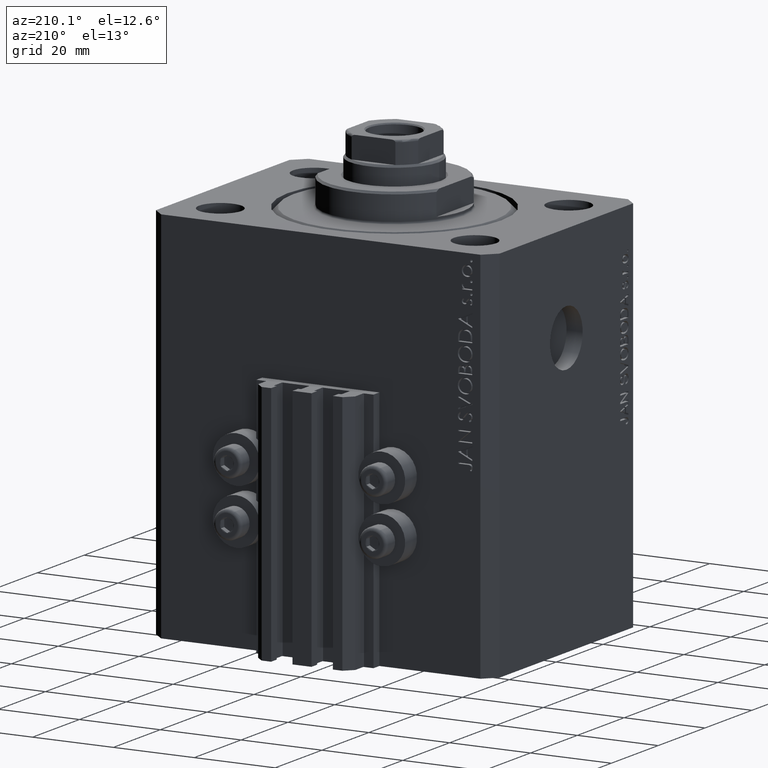
[diagram: clean part render]
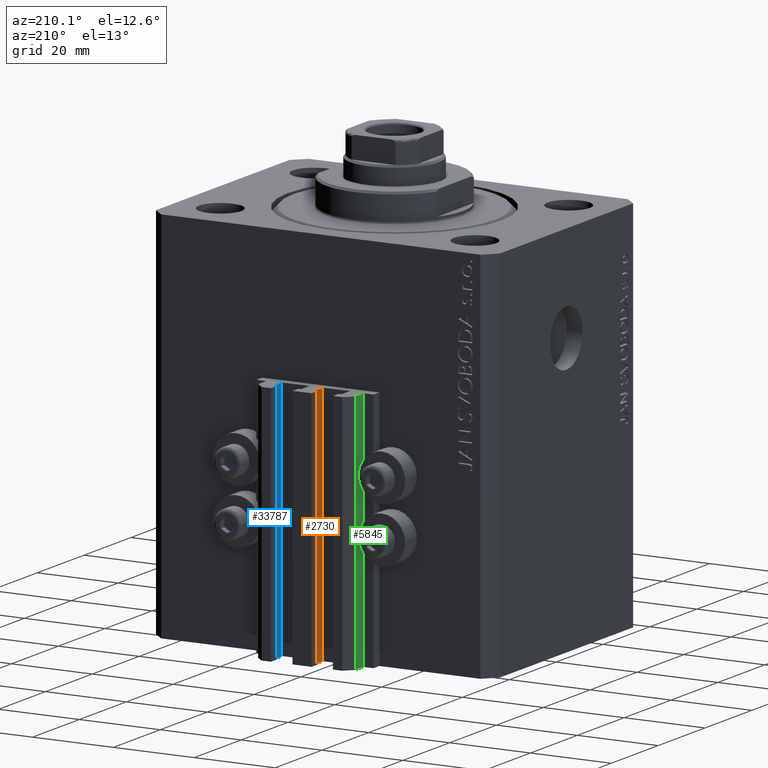
[diagram: same view with three faces highlighted in distinct colors, each labeled with its STEP entity id]
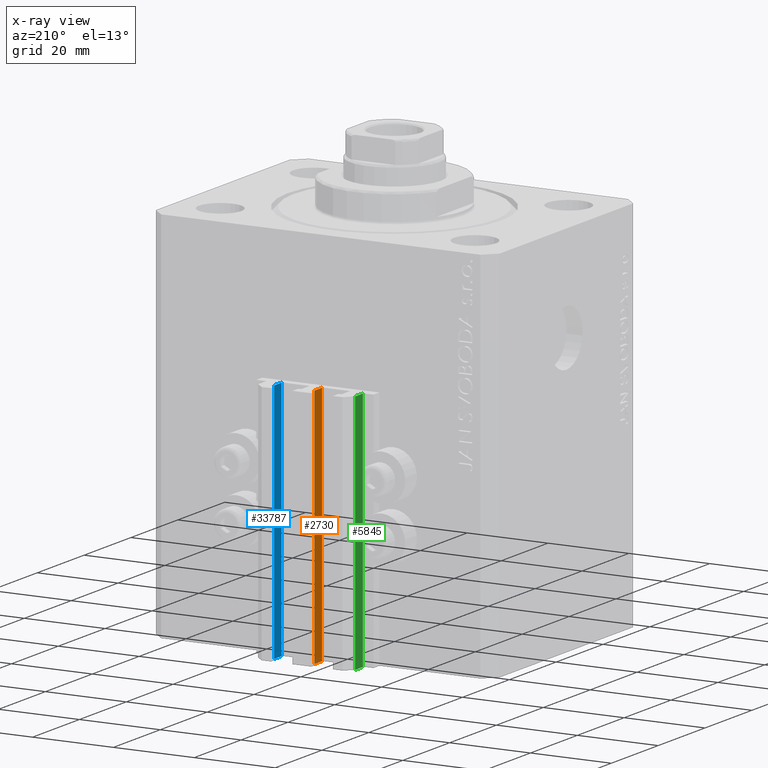
[diagram: x-ray of the same camera — body ghosted, the three highlighted faces saturated]
A machine part, auxiliary view with three faces highlighted in distinct colors.
The next image is the same camera in x-ray (body ghosted, the three faces saturated) — at least one of them is partly hidden behind the body in this view.
Their STEP definitions:

[orange] entity #2730 — the highlighted planar face has unit normal (-1, 0, 0).
#143 = VECTOR ( 'NONE', #12749, 1000.000000000000000 ) ;
#797 = EDGE_CURVE ( 'NONE', #27185, #11147, #24908, .T. ) ;
#2213 = FACE_OUTER_BOUND ( 'NONE', #34451, .T. ) ;
#2730 = ADVANCED_FACE ( 'NONE', ( #2213 ), #6260, .T. ) ;
#3183 = DIRECTION ( 'NONE',  ( -6.776263578034385456E-17, -1.000000000000000000, 0.000000000000000000 ) ) ;
#4217 = DIRECTION ( 'NONE',  ( -6.776263578034385456E-17, -1.000000000000000000, 0.000000000000000000 ) ) ;
#5197 = EDGE_CURVE ( 'NONE', #31171, #11147, #5364, .T. ) ;
#5364 = LINE ( 'NONE', #37608, #143 ) ;
#6260 = PLANE ( 'NONE',  #21388 ) ;
#6727 = DIRECTION ( 'NONE',  ( 0.000000000000000000, 0.000000000000000000, 1.000000000000000000 ) ) ;
#8247 = EDGE_CURVE ( 'NONE', #21669, #27185, #9609, .T. ) ;
#9609 = LINE ( 'NONE', #42551, #40644 ) ;
#10272 = CARTESIAN_POINT ( 'NONE',  ( -1.600000000000000755, 33.70000000000000284, -93.00000000000000000 ) ) ;
#10273 = ORIENTED_EDGE ( 'NONE', *, *, #5197, .T. ) ;
#10274 = CARTESIAN_POINT ( 'NONE',  ( -1.600000000000000755, 33.70000000000000284, -33.00000000000000000 ) ) ;
#11147 = VERTEX_POINT ( 'NONE', #10274 ) ;
#12749 = DIRECTION ( 'NONE',  ( 0.000000000000000000, 0.000000000000000000, 1.000000000000000000 ) ) ;
#17148 = CARTESIAN_POINT ( 'NONE',  ( -1.600000000000001421, 36.90000000000000568, -93.00000000000000000 ) ) ;
#18208 = CARTESIAN_POINT ( 'NONE',  ( -1.600000000000000533, 36.90000000000000568, -33.00000000000000000 ) ) ;
#19867 = CARTESIAN_POINT ( 'NONE',  ( -1.600000000000000533, 36.90000000000000568, -93.00000000000000000 ) ) ;
#20590 = ORIENTED_EDGE ( 'NONE', *, *, #44548, .T. ) ;
#20819 = DIRECTION ( 'NONE',  ( -6.776263578034385456E-17, -1.000000000000000000, 0.000000000000000000 ) ) ;
#21388 = AXIS2_PLACEMENT_3D ( 'NONE', #23936, #31800, #20819 ) ;
#21669 = VERTEX_POINT ( 'NONE', #17148 ) ;
#21819 = ORIENTED_EDGE ( 'NONE', *, *, #797, .F. ) ;
#22324 = ORIENTED_EDGE ( 'NONE', *, *, #8247, .F. ) ;
#23936 = CARTESIAN_POINT ( 'NONE',  ( -1.600000000000000533, 36.90000000000000568, -93.00000000000000000 ) ) ;
#24657 = VECTOR ( 'NONE', #4217, 1000.000000000000000 ) ;
#24908 = LINE ( 'NONE', #18208, #44254 ) ;
#27185 = VERTEX_POINT ( 'NONE', #38077 ) ;
#27284 = LINE ( 'NONE', #19867, #24657 ) ;
#31171 = VERTEX_POINT ( 'NONE', #10272 ) ;
#31800 = DIRECTION ( 'NONE',  ( -1.000000000000000000, 6.776263578034385456E-17, 0.000000000000000000 ) ) ;
#34451 = EDGE_LOOP ( 'NONE', ( #21819, #22324, #20590, #10273 ) ) ;
#37608 = CARTESIAN_POINT ( 'NONE',  ( -1.600000000000000755, 33.70000000000000284, -93.00000000000000000 ) ) ;
#38077 = CARTESIAN_POINT ( 'NONE',  ( -1.600000000000001421, 36.90000000000000568, -33.00000000000000000 ) ) ;
#40644 = VECTOR ( 'NONE', #6727, 1000.000000000000000 ) ;
#42551 = CARTESIAN_POINT ( 'NONE',  ( -1.600000000000001421, 36.90000000000000568, -93.00000000000000000 ) ) ;
#44254 = VECTOR ( 'NONE', #3183, 1000.000000000000000 ) ;
#44548 = EDGE_CURVE ( 'NONE', #21669, #31171, #27284, .T. ) ;

[blue] entity #33787 — the highlighted planar face has unit normal (-1, 0, 0).
#532 = VECTOR ( 'NONE', #43529, 1000.000000000000000 ) ;
#863 = AXIS2_PLACEMENT_3D ( 'NONE', #6016, #28212, #38261 ) ;
#2165 = EDGE_CURVE ( 'NONE', #36347, #13948, #25278, .T. ) ;
#4152 = CARTESIAN_POINT ( 'NONE',  ( 8.400000000000000355, 33.70000000000000995, -93.00000000000000000 ) ) ;
#5306 = DIRECTION ( 'NONE',  ( 0.000000000000000000, 0.000000000000000000, 1.000000000000000000 ) ) ;
#6016 = CARTESIAN_POINT ( 'NONE',  ( 8.400000000000000355, 36.90000000000001279, -93.00000000000000000 ) ) ;
#6485 = FACE_OUTER_BOUND ( 'NONE', #34936, .T. ) ;
#8140 = LINE ( 'NONE', #22688, #28172 ) ;
#13159 = LINE ( 'NONE', #38249, #26473 ) ;
#13948 = VERTEX_POINT ( 'NONE', #28246 ) ;
#14122 = CARTESIAN_POINT ( 'NONE',  ( 8.400000000000003908, 36.90000000000001279, -93.00000000000000000 ) ) ;
#14484 = ORIENTED_EDGE ( 'NONE', *, *, #2165, .F. ) ;
#14957 = EDGE_CURVE ( 'NONE', #41777, #37219, #24905, .T. ) ;
#15286 = EDGE_CURVE ( 'NONE', #37219, #13948, #13159, .T. ) ;
#17518 = ORIENTED_EDGE ( 'NONE', *, *, #14957, .T. ) ;
#18103 = DIRECTION ( 'NONE',  ( -5.421010862427508365E-16, -1.000000000000000000, 0.000000000000000000 ) ) ;
#18382 = ORIENTED_EDGE ( 'NONE', *, *, #15286, .T. ) ;
#21555 = CARTESIAN_POINT ( 'NONE',  ( 8.400000000000000355, 36.90000000000001279, -93.00000000000000000 ) ) ;
#22688 = CARTESIAN_POINT ( 'NONE',  ( 8.400000000000003908, 36.90000000000001279, -93.00000000000000000 ) ) ;
#23929 = PLANE ( 'NONE',  #863 ) ;
#24905 = LINE ( 'NONE', #21555, #532 ) ;
#25278 = LINE ( 'NONE', #36013, #45795 ) ;
#26473 = VECTOR ( 'NONE', #5306, 1000.000000000000000 ) ;
#28172 = VECTOR ( 'NONE', #37253, 1000.000000000000000 ) ;
#28212 = DIRECTION ( 'NONE',  ( -1.000000000000000000, 5.421010862427508365E-16, 0.000000000000000000 ) ) ;
#28246 = CARTESIAN_POINT ( 'NONE',  ( 8.400000000000000355, 33.70000000000000995, -33.00000000000000000 ) ) ;
#30490 = EDGE_CURVE ( 'NONE', #41777, #36347, #8140, .T. ) ;
#31252 = CARTESIAN_POINT ( 'NONE',  ( 8.400000000000003908, 36.90000000000001279, -33.00000000000000000 ) ) ;
#33787 = ADVANCED_FACE ( 'NONE', ( #6485 ), #23929, .T. ) ;
#34936 = EDGE_LOOP ( 'NONE', ( #14484, #35719, #17518, #18382 ) ) ;
#35719 = ORIENTED_EDGE ( 'NONE', *, *, #30490, .F. ) ;
#36013 = CARTESIAN_POINT ( 'NONE',  ( 8.400000000000000355, 36.90000000000001279, -33.00000000000000000 ) ) ;
#36347 = VERTEX_POINT ( 'NONE', #31252 ) ;
#37219 = VERTEX_POINT ( 'NONE', #4152 ) ;
#37253 = DIRECTION ( 'NONE',  ( 0.000000000000000000, 0.000000000000000000, 1.000000000000000000 ) ) ;
#38249 = CARTESIAN_POINT ( 'NONE',  ( 8.400000000000000355, 33.70000000000000995, -93.00000000000000000 ) ) ;
#38261 = DIRECTION ( 'NONE',  ( -5.421010862427508365E-16, -1.000000000000000000, 0.000000000000000000 ) ) ;
#41777 = VERTEX_POINT ( 'NONE', #14122 ) ;
#43529 = DIRECTION ( 'NONE',  ( -5.421010862427508365E-16, -1.000000000000000000, 0.000000000000000000 ) ) ;
#45795 = VECTOR ( 'NONE', #18103, 1000.000000000000000 ) ;

[green] entity #5845 — the highlighted planar face has unit normal (-1, 0, 0).
#4474 = CARTESIAN_POINT ( 'NONE',  ( -12.00000000000000000, 37.49999999999999289, -93.00000000000000000 ) ) ;
#5065 = ORIENTED_EDGE ( 'NONE', *, *, #45306, .T. ) ;
#5845 = ADVANCED_FACE ( 'NONE', ( #22372 ), #29768, .T. ) ;
#6299 = DIRECTION ( 'NONE',  ( 0.000000000000000000, 0.000000000000000000, 1.000000000000000000 ) ) ;
#6385 = VECTOR ( 'NONE', #47001, 1000.000000000000000 ) ;
#7690 = VERTEX_POINT ( 'NONE', #46269 ) ;
#10035 = AXIS2_PLACEMENT_3D ( 'NONE', #4474, #11630, #15448 ) ;
#10156 = LINE ( 'NONE', #39529, #33576 ) ;
#10231 = LINE ( 'NONE', #18342, #6385 ) ;
#10313 = EDGE_CURVE ( 'NONE', #7690, #39495, #36334, .T. ) ;
#10921 = EDGE_LOOP ( 'NONE', ( #38282, #42404, #5065, #41061 ) ) ;
#11630 = DIRECTION ( 'NONE',  ( -1.000000000000000000, 0.000000000000000000, 0.000000000000000000 ) ) ;
#13278 = DIRECTION ( 'NONE',  ( 0.000000000000000000, -1.000000000000000000, 0.000000000000000000 ) ) ;
#15448 = DIRECTION ( 'NONE',  ( 0.000000000000000000, 0.000000000000000000, 1.000000000000000000 ) ) ;
#17044 = LINE ( 'NONE', #39011, #39692 ) ;
#18342 = CARTESIAN_POINT ( 'NONE',  ( -12.00000000000000000, 37.49999999999999289, -93.00000000000000000 ) ) ;
#18501 = VERTEX_POINT ( 'NONE', #43578 ) ;
#18983 = CARTESIAN_POINT ( 'NONE',  ( -12.00000000000000000, 37.49999999999999289, -33.00000000000000000 ) ) ;
#19718 = VERTEX_POINT ( 'NONE', #36032 ) ;
#22260 = CARTESIAN_POINT ( 'NONE',  ( -12.00000000000000000, 37.49999999999999289, -93.00000000000000000 ) ) ;
#22372 = FACE_OUTER_BOUND ( 'NONE', #10921, .T. ) ;
#28488 = VECTOR ( 'NONE', #37063, 1000.000000000000000 ) ;
#29768 = PLANE ( 'NONE',  #10035 ) ;
#31861 = EDGE_CURVE ( 'NONE', #39495, #18501, #10156, .T. ) ;
#32780 = EDGE_CURVE ( 'NONE', #19718, #18501, #17044, .T. ) ;
#33576 = VECTOR ( 'NONE', #13278, 1000.000000000000000 ) ;
#36032 = CARTESIAN_POINT ( 'NONE',  ( -12.00000000000000000, 34.19999999999999574, -93.00000000000000000 ) ) ;
#36334 = LINE ( 'NONE', #22260, #28488 ) ;
#37063 = DIRECTION ( 'NONE',  ( 0.000000000000000000, 0.000000000000000000, 1.000000000000000000 ) ) ;
#38282 = ORIENTED_EDGE ( 'NONE', *, *, #31861, .F. ) ;
#39011 = CARTESIAN_POINT ( 'NONE',  ( -12.00000000000000000, 34.19999999999999574, -93.00000000000000000 ) ) ;
#39495 = VERTEX_POINT ( 'NONE', #18983 ) ;
#39529 = CARTESIAN_POINT ( 'NONE',  ( -12.00000000000000000, 37.49999999999999289, -33.00000000000000000 ) ) ;
#39692 = VECTOR ( 'NONE', #6299, 1000.000000000000000 ) ;
#41061 = ORIENTED_EDGE ( 'NONE', *, *, #32780, .T. ) ;
#42404 = ORIENTED_EDGE ( 'NONE', *, *, #10313, .F. ) ;
#43578 = CARTESIAN_POINT ( 'NONE',  ( -12.00000000000000000, 34.19999999999999574, -33.00000000000000000 ) ) ;
#45306 = EDGE_CURVE ( 'NONE', #7690, #19718, #10231, .T. ) ;
#46269 = CARTESIAN_POINT ( 'NONE',  ( -12.00000000000000000, 37.49999999999999289, -93.00000000000000000 ) ) ;
#47001 = DIRECTION ( 'NONE',  ( 0.000000000000000000, -1.000000000000000000, 0.000000000000000000 ) ) ;